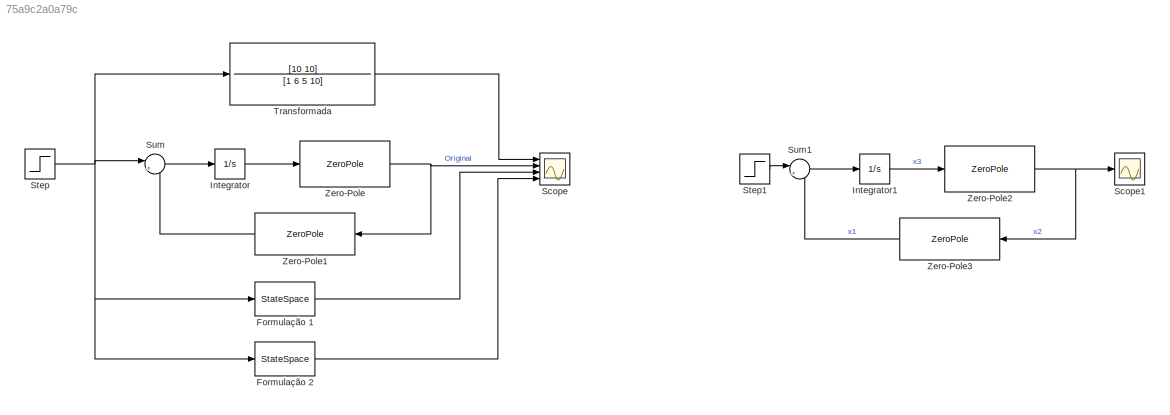
MODEL slx_75a9c2a0a79c
KIND model
CONFIG AbsTol = auto
CONFIG EnableMultiTasking = off
CONFIG FixedStep = auto
CONFIG MaxStep = auto
CONFIG MinStep = auto
CONFIG RelTol = 1e-3
CONFIG SampleTimeConstraint = Unconstrained
CONFIG SolverName = VariableStepAuto
CONFIG StartTime = 0.0
CONFIG StopTime = 10.0
BLOCK [StateSpace] Formulação 1
  A = [0 1 0; 0 0 1;-10 -5 -6]
  B = [0; 10;-50]
  C = [1 0 0]
  D = [0]
  InitialCondition = 0
  Ports = [1, 1]
BLOCK [StateSpace] Formulação 2
  A = [-1 1 0; 0 -5 10;-1 0 0]
  B = [0; 0;1]
  C = [0 1 0]
  D = [0]
  InitialCondition = 0
  Ports = [1, 1]
BLOCK [Integrator] Integrator
  Ports = [1, 1]
BLOCK [Integrator] Integrator1
  Ports = [1, 1]
BLOCK [Scope] Scope
  Floating = off
  NumInputPorts = 4
  Ports = [4]
  ScopeSpecificationString = Simulink.scopes.TimeScopeBlockCfg('CurrentConfiguration', extmgr.ConfigurationSet(extmgr.Configuration('Core','General UI',true),extmgr.Configuration('Core','Source UI',true),extmgr.Configuration('Sources','WiredSimulink',true,'DataLoggingVariableName','ScopeData1'),extmgr.Configuration('Visuals','Time Domain',true,'SerializedDisplays',{struct('MinYLimReal','-0.89632','MaxYLimReal','2.32693','YLab...<+1511ch>
BLOCK [Scope] Scope1
  Floating = off
  NumInputPorts = 1
  Ports = [1]
  ScopeSpecificationString = Simulink.scopes.TimeScopeBlockCfg('CurrentConfiguration', extmgr.ConfigurationSet(extmgr.Configuration('Core','General UI',true),extmgr.Configuration('Core','Source UI',true),extmgr.Configuration('Sources','WiredSimulink',true),extmgr.Configuration('Visuals','Time Domain',true,'SerializedDisplays',{struct('MinYLimReal','-0.24049','MaxYLimReal','2.16442','YLabelReal','','MinYLimMag','0.00000','MaxY...<+1322ch>
BLOCK [Step] Step
  SampleTime = 0
BLOCK [Step] Step1
  SampleTime = 0
BLOCK [Sum] Sum
  Inputs = |+-
  Ports = [2, 1]
BLOCK [Sum] Sum1
  Inputs = |+-
  Ports = [2, 1]
BLOCK [TransferFcn] Transformada 
  Denominator = [1 6 5 10]
  Numerator = [10 10]
BLOCK [ZeroPole] Zero-Pole
  Gain = [10]
  Poles = [-5]
  Zeros = []
BLOCK [ZeroPole] Zero-Pole1
  Poles = [-1]
  Zeros = []
BLOCK [ZeroPole] Zero-Pole2
  Gain = [10]
  Poles = [-5]
  Zeros = []
BLOCK [ZeroPole] Zero-Pole3
  Poles = [-1]
  Zeros = []
LINE Formulação 1:1 -> Scope:3
LINE Formulação 2:1 -> Scope:4
LINE Integrator1:1 -> Zero-Pole2:1
LINE Integrator:1 -> Zero-Pole:1
LINE Step1:1 -> Sum1:1
NET Step:1 -> Formulação 1:1, Formulação 2:1, Sum:1, Transformada :1
LINE Sum1:1 -> Integrator1:1
LINE Sum:1 -> Integrator:1
LINE Transformada :1 -> Scope:1
LINE Zero-Pole1:1 -> Sum:2
NET Zero-Pole2:1 -> Scope1:1, Zero-Pole3:1
LINE Zero-Pole3:1 -> Sum1:2
NET Zero-Pole:1 -> Scope:2, Zero-Pole1:1
note: NET lines group one-source signal fan-out (src -> all destinations, sorted); 1:1 wires keep LINE
